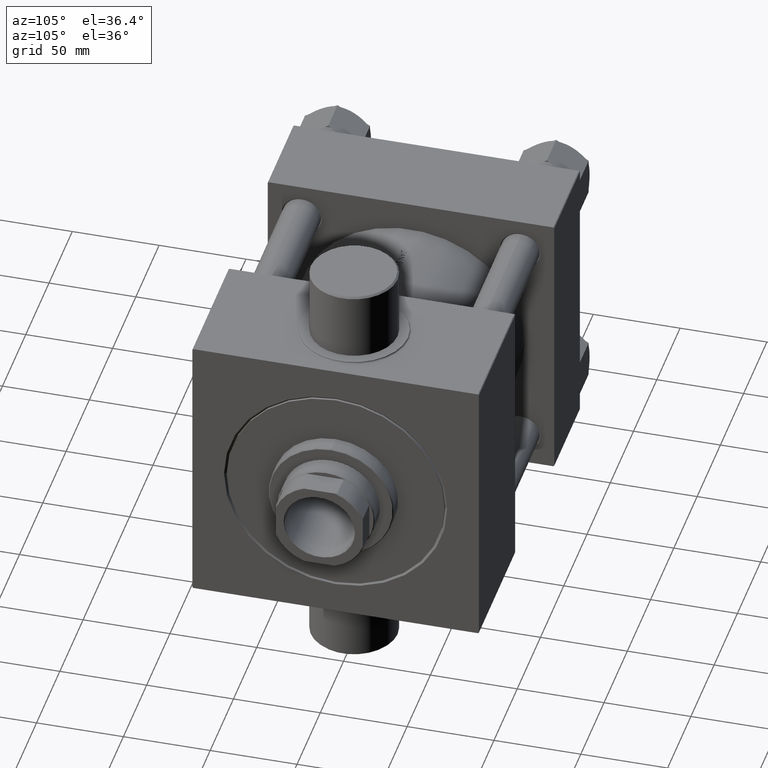
[diagram: clean part render]
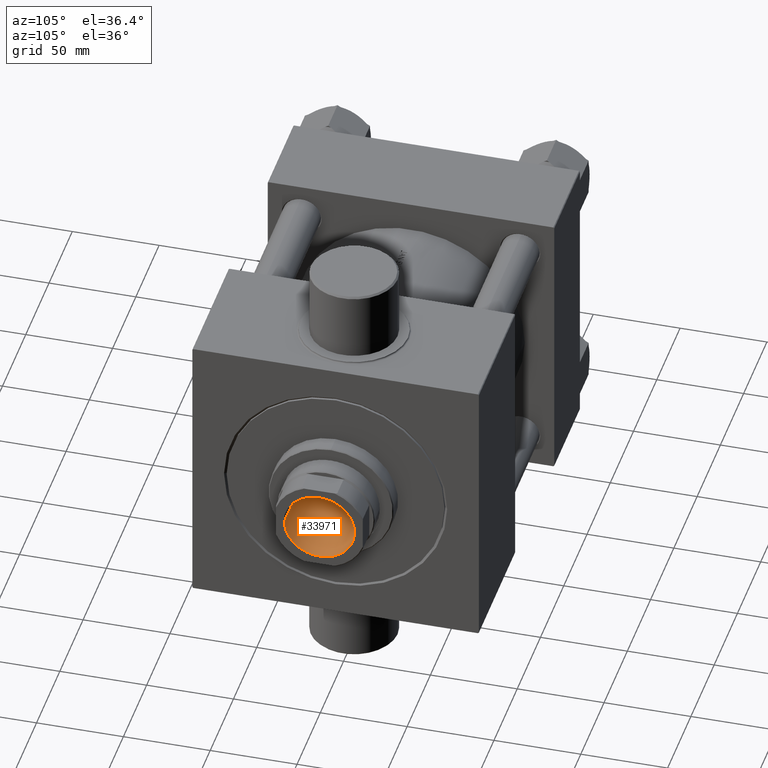
[diagram: same view with one face highlighted and labeled with its STEP entity id]
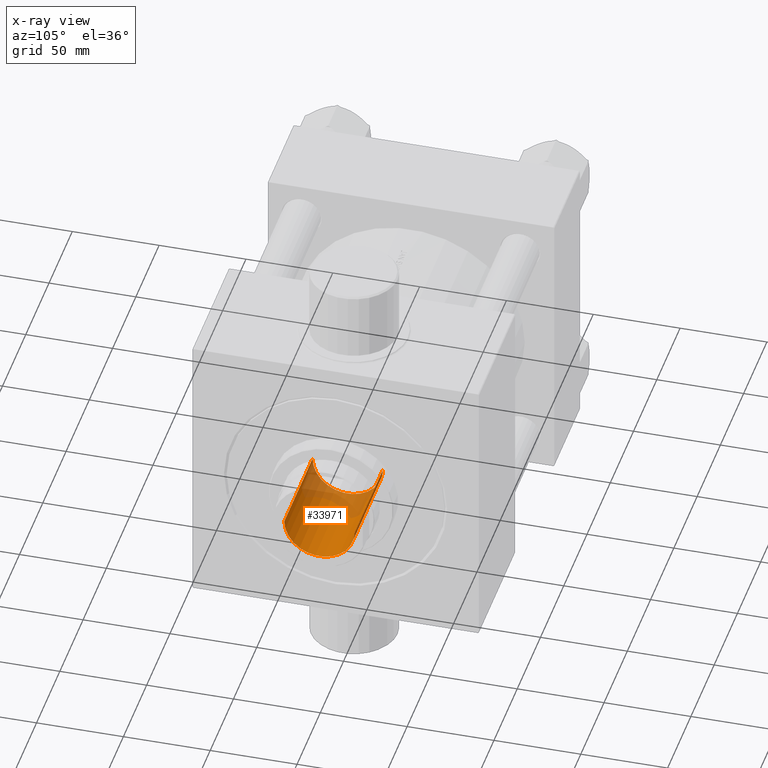
[diagram: x-ray of the same camera — body ghosted, the highlighted face saturated]
A machine part, auxiliary view. The second image highlights one B-rep face of the part: STEP entity #33971.
The next image is the same camera in x-ray: the body ghosted, the highlighted face saturated — about 26% of this face is hidden behind the body in this view.
In plain terms, the highlighted cylindrical surface (edge-blend (fillet) strip) has radius 20.25 mm, axis along (1, 0, 0).
Its self-contained STEP definition (entity closure, byte-faithful):
#861 = EDGE_LOOP ( 'NONE', ( #20415, #11063, #23669, #38078 ) ) ;
#1300 = CARTESIAN_POINT ( 'NONE',  ( 0.000000000000000000, 0.000000000000000000, 196.7000000000001023 ) ) ;
#2191 = AXIS2_PLACEMENT_3D ( 'NONE', #14230, #14005, #13300 ) ;
#7050 = DIRECTION ( 'NONE',  ( -0.000000000000000000, -0.000000000000000000, 1.000000000000000000 ) ) ;
#7872 = VERTEX_POINT ( 'NONE', #9414 ) ;
#7887 = EDGE_CURVE ( 'NONE', #20408, #33188, #31244, .T. ) ;
#9183 = AXIS2_PLACEMENT_3D ( 'NONE', #1300, #40876, #15283 ) ;
#9414 = CARTESIAN_POINT ( 'NONE',  ( 20.24999999999999289, 0.000000000000000000, 196.7000000000001023 ) ) ;
#10072 = AXIS2_PLACEMENT_3D ( 'NONE', #29331, #7050, #32901 ) ;
#10606 = FACE_OUTER_BOUND ( 'NONE', #861, .T. ) ;
#11063 = ORIENTED_EDGE ( 'NONE', *, *, #18603, .F. ) ;
#13300 = DIRECTION ( 'NONE',  ( 1.000000000000000000, 0.000000000000000000, 0.000000000000000000 ) ) ;
#14005 = DIRECTION ( 'NONE',  ( -0.000000000000000000, -0.000000000000000000, 1.000000000000000000 ) ) ;
#14230 = CARTESIAN_POINT ( 'NONE',  ( 0.000000000000000000, 0.000000000000000000, 136.0000000000000000 ) ) ;
#14275 = CARTESIAN_POINT ( 'NONE',  ( 20.24999999999999289, 0.000000000000000000, 197.0000000000000000 ) ) ;
#15283 = DIRECTION ( 'NONE',  ( 1.000000000000000000, 0.000000000000000000, 0.000000000000000000 ) ) ;
#18059 = DIRECTION ( 'NONE',  ( -0.000000000000000000, -0.000000000000000000, 1.000000000000000000 ) ) ;
#18603 = EDGE_CURVE ( 'NONE', #28104, #20408, #43060, .T. ) ;
#18663 = VECTOR ( 'NONE', #41431, 1000.000000000000000 ) ;
#19766 = CIRCLE ( 'NONE', #9183, 20.24999999999999289 ) ;
#20408 = VERTEX_POINT ( 'NONE', #46758 ) ;
#20415 = ORIENTED_EDGE ( 'NONE', *, *, #7887, .F. ) ;
#20455 = EDGE_CURVE ( 'NONE', #28104, #7872, #28279, .T. ) ;
#21914 = VECTOR ( 'NONE', #18059, 1000.000000000000000 ) ;
#23669 = ORIENTED_EDGE ( 'NONE', *, *, #20455, .T. ) ;
#25065 = CYLINDRICAL_SURFACE ( 'NONE', #10072, 20.24999999999999289 ) ;
#28104 = VERTEX_POINT ( 'NONE', #31947 ) ;
#28279 = LINE ( 'NONE', #14275, #21914 ) ;
#29330 = EDGE_CURVE ( 'NONE', #7872, #33188, #19766, .T. ) ;
#29331 = CARTESIAN_POINT ( 'NONE',  ( 0.000000000000000000, 0.000000000000000000, 197.0000000000000000 ) ) ;
#30773 = CARTESIAN_POINT ( 'NONE',  ( -20.24999999999999289, 2.479909768273389511E-15, 197.0000000000000000 ) ) ;
#31244 = LINE ( 'NONE', #30773, #18663 ) ;
#31947 = CARTESIAN_POINT ( 'NONE',  ( 20.24999999999998934, 0.000000000000000000, 136.0000000000000000 ) ) ;
#32901 = DIRECTION ( 'NONE',  ( 1.000000000000000000, 0.000000000000000000, 0.000000000000000000 ) ) ;
#33188 = VERTEX_POINT ( 'NONE', #38948 ) ;
#33971 = ADVANCED_FACE ( 'NONE', ( #10606 ), #25065, .F. ) ;
#38078 = ORIENTED_EDGE ( 'NONE', *, *, #29330, .T. ) ;
#38948 = CARTESIAN_POINT ( 'NONE',  ( -20.24999999999999289, 2.479909768273389511E-15, 196.7000000000001023 ) ) ;
#40876 = DIRECTION ( 'NONE',  ( 0.000000000000000000, 0.000000000000000000, 1.000000000000000000 ) ) ;
#41431 = DIRECTION ( 'NONE',  ( -0.000000000000000000, -0.000000000000000000, 1.000000000000000000 ) ) ;
#43060 = CIRCLE ( 'NONE', #2191, 20.24999999999998934 ) ;
#46758 = CARTESIAN_POINT ( 'NONE',  ( -20.24999999999998934, 2.479909768273389117E-15, 136.0000000000000000 ) ) ;